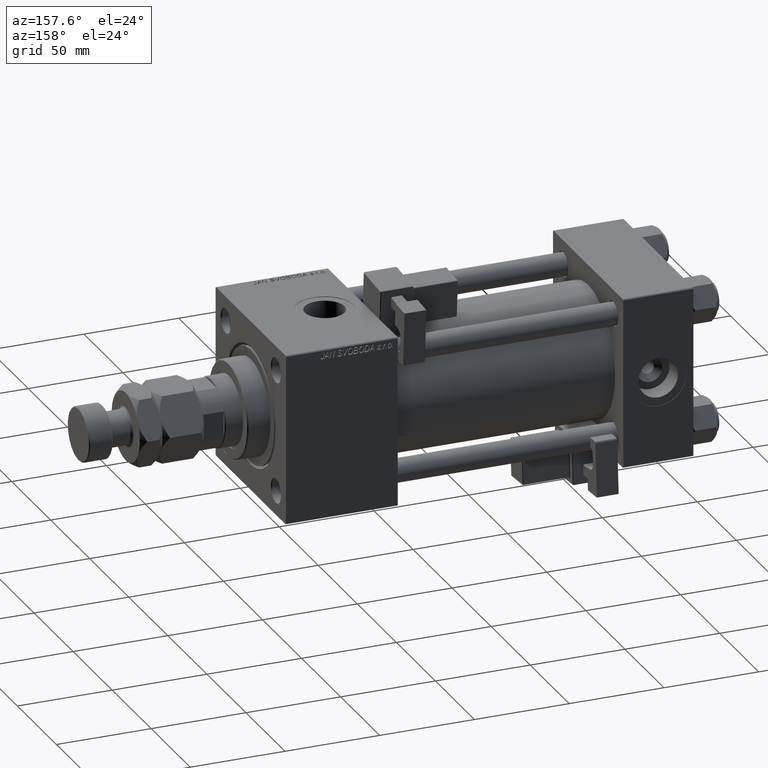
[diagram: clean part render]
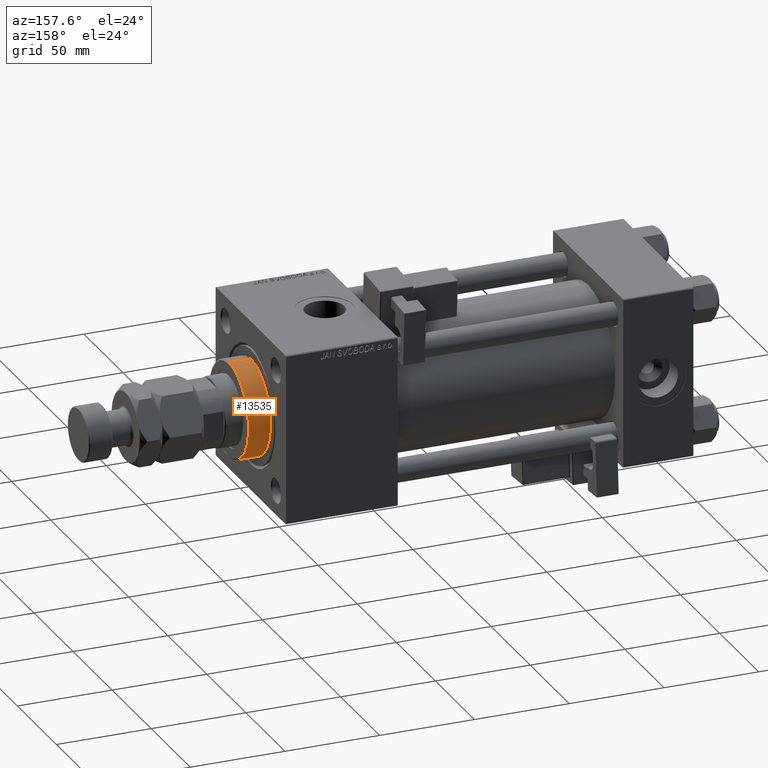
[diagram: same view with one face highlighted and labeled with its STEP entity id]
A machine part, auxiliary view. The second image highlights one B-rep face of the part: STEP entity #13535.
In plain terms, the highlighted cylindrical surface (partial cylindrical patch) has radius 25 mm, axis along (-1, -0, 0).
Its self-contained STEP definition (entity closure, byte-faithful):
#2139 = AXIS2_PLACEMENT_3D ( 'NONE', #7098, #11753, #20221 ) ;
#3458 = CARTESIAN_POINT ( 'NONE',  ( -25.00000000000000000, 0.000000000000000000, 28.69999999999999929 ) ) ;
#3877 = VERTEX_POINT ( 'NONE', #3458 ) ;
#4069 = CARTESIAN_POINT ( 'NONE',  ( -25.00000000000000000, 0.000000000000000000, 40.70000000000000284 ) ) ;
#5341 = DIRECTION ( 'NONE',  ( -1.000000000000000000, 0.000000000000000000, 0.000000000000000000 ) ) ;
#5791 = AXIS2_PLACEMENT_3D ( 'NONE', #47460, #43110, #5341 ) ;
#6863 = DIRECTION ( 'NONE',  ( 1.000000000000000000, 0.000000000000000000, 0.000000000000000000 ) ) ;
#7098 = CARTESIAN_POINT ( 'NONE',  ( 0.000000000000000000, 0.000000000000000000, 40.20000000000000284 ) ) ;
#7758 = CARTESIAN_POINT ( 'NONE',  ( 25.00000000000000000, 3.061616997868383043E-15, 40.70000000000000284 ) ) ;
#8893 = AXIS2_PLACEMENT_3D ( 'NONE', #36409, #15610, #6863 ) ;
#9196 = VECTOR ( 'NONE', #16389, 1000.000000000000000 ) ;
#9420 = CARTESIAN_POINT ( 'NONE',  ( 25.00000000000000000, 3.061616997868383043E-15, 28.69999999999999929 ) ) ;
#11753 = DIRECTION ( 'NONE',  ( 0.000000000000000000, 0.000000000000000000, -1.000000000000000000 ) ) ;
#13535 = ADVANCED_FACE ( 'NONE', ( #13575 ), #39280, .T. ) ;
#13575 = FACE_OUTER_BOUND ( 'NONE', #14351, .T. ) ;
#14118 = CIRCLE ( 'NONE', #8893, 25.00000000000000000 ) ;
#14351 = EDGE_LOOP ( 'NONE', ( #36166, #41946, #22876, #50398 ) ) ;
#15610 = DIRECTION ( 'NONE',  ( 0.000000000000000000, 0.000000000000000000, 1.000000000000000000 ) ) ;
#16389 = DIRECTION ( 'NONE',  ( -0.000000000000000000, -0.000000000000000000, -1.000000000000000000 ) ) ;
#20221 = DIRECTION ( 'NONE',  ( 1.000000000000000000, 0.000000000000000000, 0.000000000000000000 ) ) ;
#22303 = VERTEX_POINT ( 'NONE', #47496 ) ;
#22559 = EDGE_CURVE ( 'NONE', #23356, #3877, #14118, .T. ) ;
#22876 = ORIENTED_EDGE ( 'NONE', *, *, #22559, .T. ) ;
#23102 = CIRCLE ( 'NONE', #2139, 25.00000000000000000 ) ;
#23356 = VERTEX_POINT ( 'NONE', #9420 ) ;
#28198 = CARTESIAN_POINT ( 'NONE',  ( -25.00000000000000000, 0.000000000000000000, 40.20000000000000284 ) ) ;
#29950 = VERTEX_POINT ( 'NONE', #28198 ) ;
#33343 = LINE ( 'NONE', #4069, #9196 ) ;
#33533 = EDGE_CURVE ( 'NONE', #29950, #3877, #33343, .T. ) ;
#36166 = ORIENTED_EDGE ( 'NONE', *, *, #46657, .T. ) ;
#36409 = CARTESIAN_POINT ( 'NONE',  ( 0.000000000000000000, 0.000000000000000000, 28.69999999999999929 ) ) ;
#39280 = CYLINDRICAL_SURFACE ( 'NONE', #5791, 25.00000000000000000 ) ;
#40918 = EDGE_CURVE ( 'NONE', #22303, #23356, #45789, .T. ) ;
#41946 = ORIENTED_EDGE ( 'NONE', *, *, #40918, .T. ) ;
#43110 = DIRECTION ( 'NONE',  ( -0.000000000000000000, -0.000000000000000000, -1.000000000000000000 ) ) ;
#45144 = VECTOR ( 'NONE', #53453, 1000.000000000000000 ) ;
#45789 = LINE ( 'NONE', #7758, #45144 ) ;
#46657 = EDGE_CURVE ( 'NONE', #29950, #22303, #23102, .T. ) ;
#47460 = CARTESIAN_POINT ( 'NONE',  ( 0.000000000000000000, 0.000000000000000000, 40.70000000000000284 ) ) ;
#47496 = CARTESIAN_POINT ( 'NONE',  ( 25.00000000000000000, 3.061616997868383043E-15, 40.20000000000000284 ) ) ;
#50398 = ORIENTED_EDGE ( 'NONE', *, *, #33533, .F. ) ;
#53453 = DIRECTION ( 'NONE',  ( -0.000000000000000000, -0.000000000000000000, -1.000000000000000000 ) ) ;